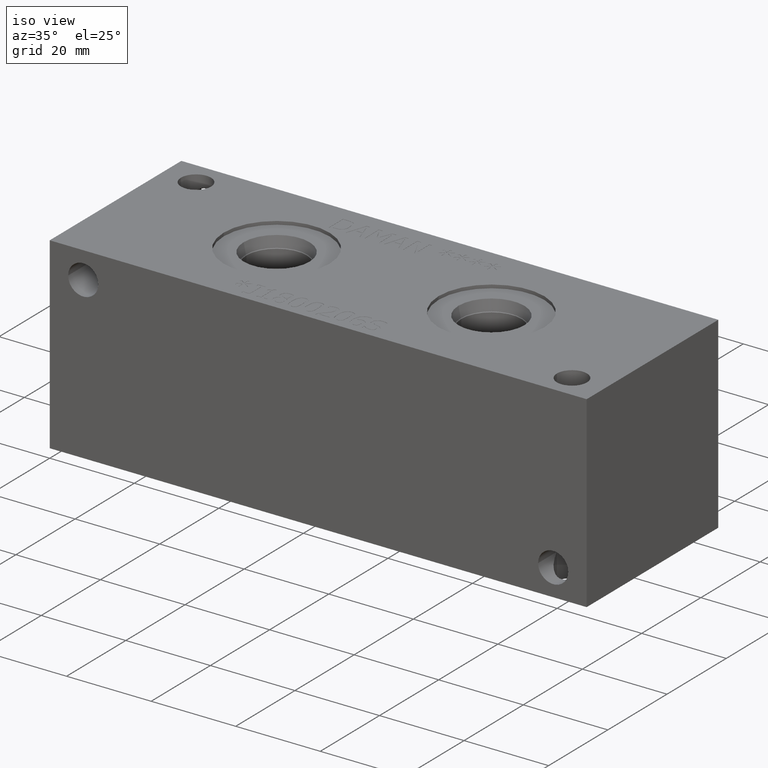
[diagram: clean part render]
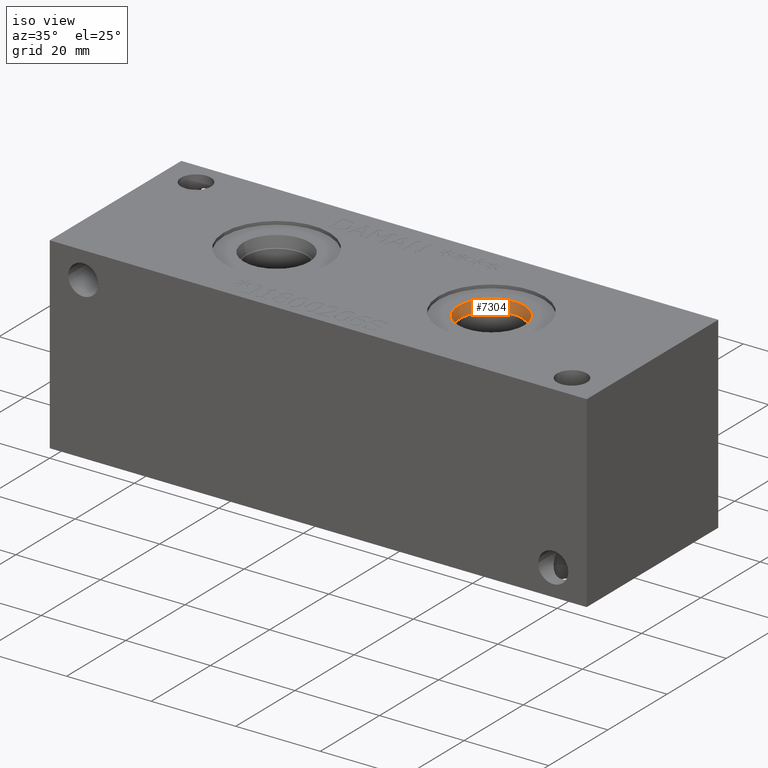
[diagram: same view with one face highlighted and labeled with its STEP entity id]
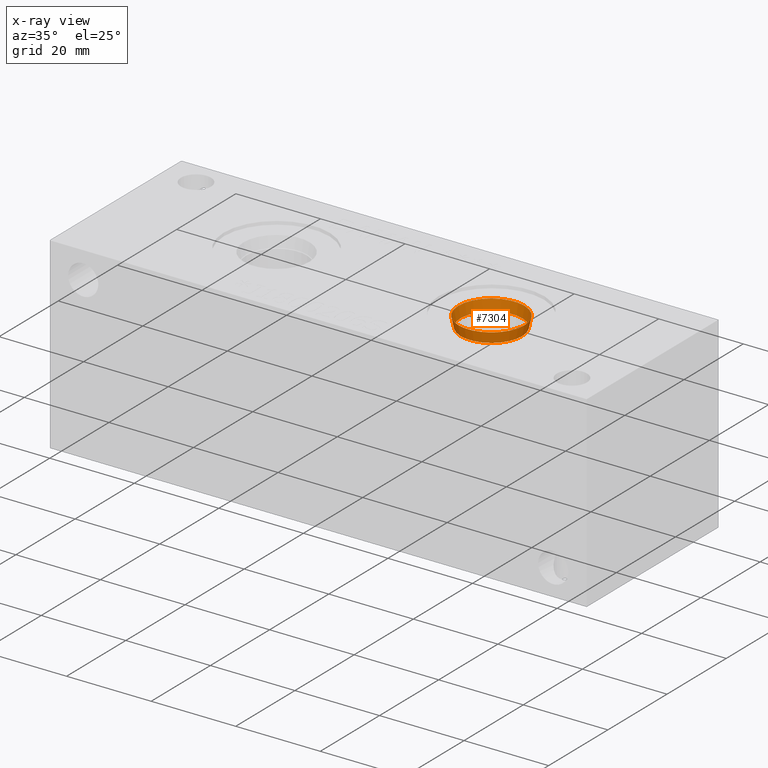
[diagram: x-ray of the same camera — body ghosted, the highlighted face saturated]
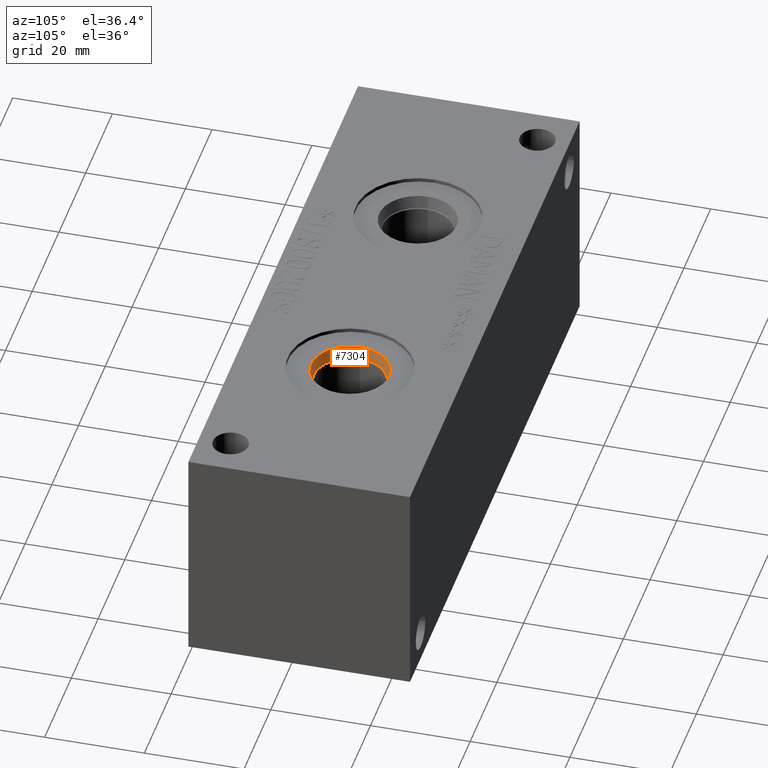
[diagram: same view with one face highlighted and labeled with its STEP entity id]
A machine part, iso view. The second image highlights one B-rep face of the part: STEP entity #7304.
The next image is the same camera in x-ray: the body ghosted, the highlighted face saturated — about 0% of this face is hidden behind the body in this view.
A second angle (auxiliary view) of the same face is appended — the face is thin or edge-on in the first view.
In plain terms, the highlighted conical surface has half-angle 12.038 deg.
Its self-contained STEP definition (entity closure, byte-faithful):
#32=CONICAL_SURFACE('',#7637,7.5311,0.210103251840967);
#125=CIRCLE('',#7635,7.79780000000001);
#126=CIRCLE('',#7636,7.79780000000001);
#127=CIRCLE('',#7638,7.2644);
#128=CIRCLE('',#7639,7.2644);
#894=FACE_OUTER_BOUND('',#1305,.T.);
#1305=EDGE_LOOP('',(#6287,#6288,#6289,#6290,#6291,#6292));
#2002=LINE('',#12535,#2689);
#2689=VECTOR('',#8947,7.5311);
#3354=VERTEX_POINT('',#12529);
#3355=VERTEX_POINT('',#12530);
#3356=VERTEX_POINT('',#12534);
#3357=VERTEX_POINT('',#12536);
#4341=EDGE_CURVE('',#3354,#3355,#125,.T.);
#4342=EDGE_CURVE('',#3355,#3354,#126,.T.);
#4343=EDGE_CURVE('',#3355,#3356,#2002,.T.);
#4344=EDGE_CURVE('',#3356,#3357,#127,.T.);
#4345=EDGE_CURVE('',#3357,#3356,#128,.T.);
#6287=ORIENTED_EDGE('',*,*,#4341,.F.);
#6288=ORIENTED_EDGE('',*,*,#4342,.F.);
#6289=ORIENTED_EDGE('',*,*,#4343,.T.);
#6290=ORIENTED_EDGE('',*,*,#4344,.T.);
#6291=ORIENTED_EDGE('',*,*,#4345,.T.);
#6292=ORIENTED_EDGE('',*,*,#4343,.F.);
#7304=ADVANCED_FACE('',(#894),#32,.F.);
#7635=AXIS2_PLACEMENT_3D('',#12531,#8941,#8942);
#7636=AXIS2_PLACEMENT_3D('',#12532,#8943,#8944);
#7637=AXIS2_PLACEMENT_3D('',#12533,#8945,#8946);
#7638=AXIS2_PLACEMENT_3D('',#12537,#8948,#8949);
#7639=AXIS2_PLACEMENT_3D('',#12538,#8950,#8951);
#8941=DIRECTION('center_axis',(0.,0.,-1.));
#8942=DIRECTION('ref_axis',(1.,0.,0.));
#8943=DIRECTION('center_axis',(0.,0.,-1.));
#8944=DIRECTION('ref_axis',(1.,0.,0.));
#8945=DIRECTION('center_axis',(0.,0.,1.));
#8946=DIRECTION('ref_axis',(1.,0.,0.));
#8947=DIRECTION('',(0.208560882227198,-2.55413416846886E-17,-0.978009385642394));
#8948=DIRECTION('center_axis',(0.,0.,-1.));
#8949=DIRECTION('ref_axis',(1.,0.,0.));
#8950=DIRECTION('center_axis',(0.,0.,-1.));
#8951=DIRECTION('ref_axis',(1.,0.,0.));
#12529=CARTESIAN_POINT('',(96.6978,22.225,43.6626));
#12530=CARTESIAN_POINT('',(81.1022,22.225,43.6626));
#12531=CARTESIAN_POINT('Origin',(88.9,22.225,43.6626));
#12532=CARTESIAN_POINT('Origin',(88.9,22.225,43.6626));
#12533=CARTESIAN_POINT('Origin',(88.9,22.225,42.4119575));
#12534=CARTESIAN_POINT('',(81.6356,22.225,41.161315));
#12535=CARTESIAN_POINT('',(81.3689,22.225,42.4119575));
#12536=CARTESIAN_POINT('',(96.1644,22.225,41.161315));
#12537=CARTESIAN_POINT('Origin',(88.9,22.225,41.161315));
#12538=CARTESIAN_POINT('Origin',(88.9,22.225,41.161315));